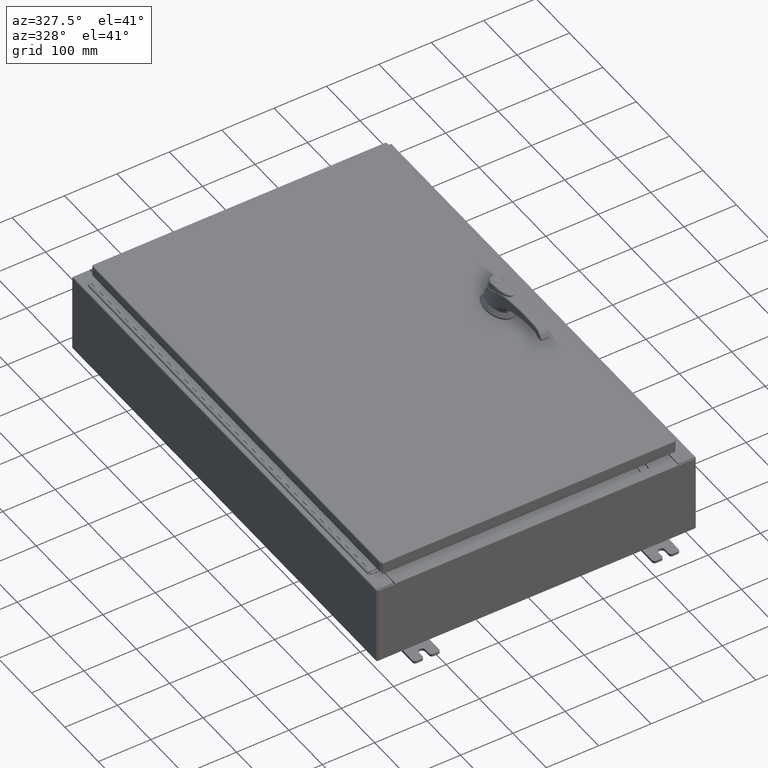
[diagram: clean part render]
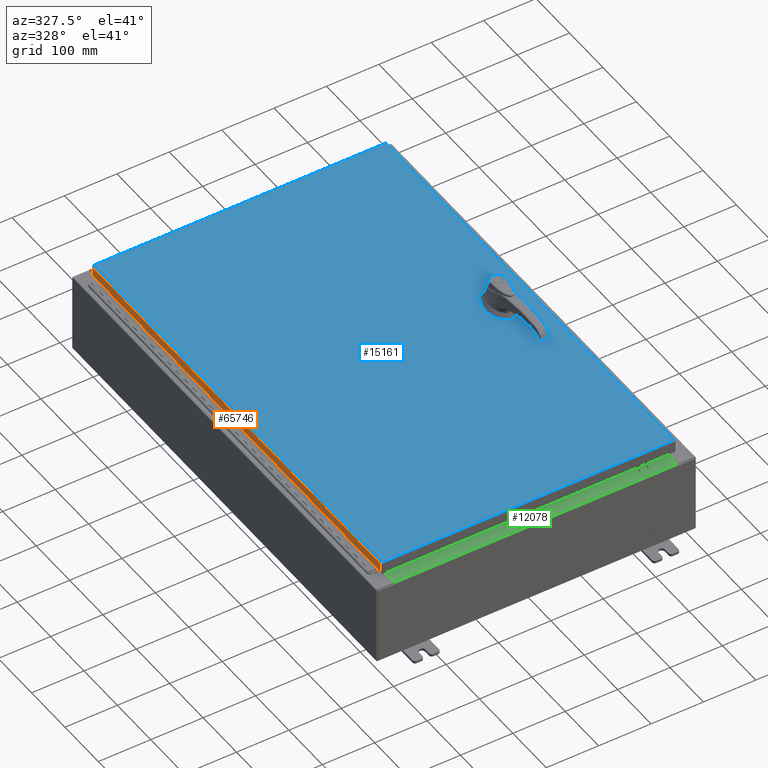
[diagram: same view with three faces highlighted in distinct colors, each labeled with its STEP entity id]
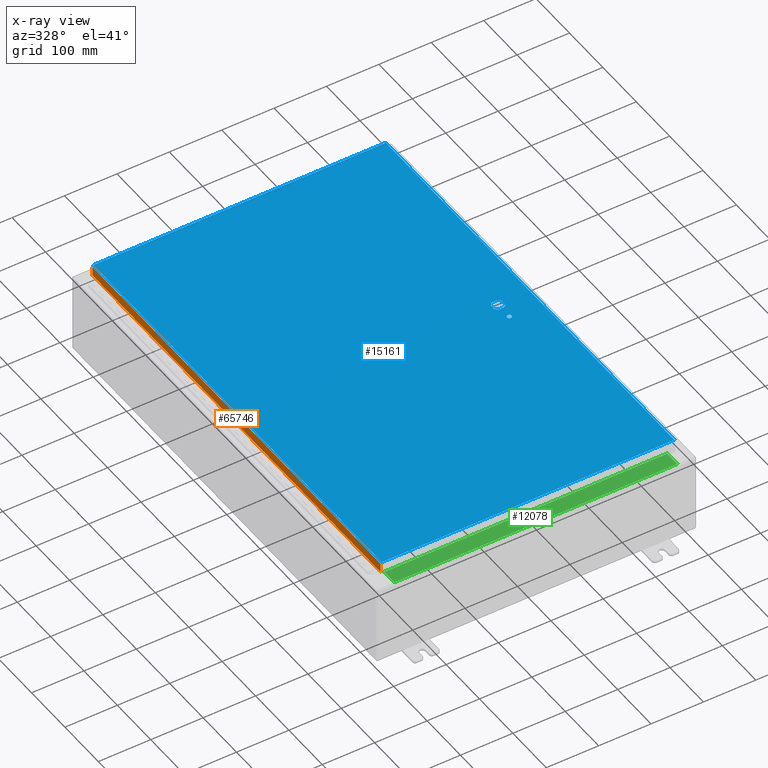
[diagram: x-ray of the same camera — body ghosted, the three highlighted faces saturated]
A machine part, auxiliary view with three faces highlighted in distinct colors.
The next image is the same camera in x-ray (body ghosted, the three faces saturated) — at least one of them is partly hidden behind the body in this view.
Their STEP definitions:

[orange] entity #65746 — the highlighted planar face has unit normal (1, 0, -0).
#4711 = CARTESIAN_POINT ( 'NONE',  ( -11.07800000000000300, -7.081645506917722700E-016, 3.387282206785411200E-014 ) ) ;
#9994 = CARTESIAN_POINT ( 'NONE',  ( -11.07800000000000300, 17.00515786437627600, 1.526192047629567600E-013 ) ) ;
#10007 = CARTESIAN_POINT ( 'NONE',  ( -11.07800000000000500, 17.00515786437628000, -0.7949999999999954900 ) ) ;
#13956 = CARTESIAN_POINT ( 'NONE',  ( -11.07800000000000300, -17.00515786437626200, -0.08770000000000115200 ) ) ;
#16037 = DIRECTION ( 'NONE',  ( -3.034122441942816500E-015, 0.0000000000000000000, -1.000000000000000000 ) ) ;
#18024 = VERTEX_POINT ( 'NONE', #13956 ) ;
#19663 = DIRECTION ( 'NONE',  ( -3.034122441942816500E-015, 6.982962677686265900E-015, -1.000000000000000000 ) ) ;
#19892 = EDGE_LOOP ( 'NONE', ( #105180, #26429, #85791, #76026 ) ) ;
#22192 = DIRECTION ( 'NONE',  ( 6.392530697705130400E-017, -1.000000000000000000, 6.392530697705074900E-017 ) ) ;
#23345 = CARTESIAN_POINT ( 'NONE',  ( -11.07800000000000500, -17.09399999999999800, -0.7949999999999997100 ) ) ;
#26429 = ORIENTED_EDGE ( 'NONE', *, *, #71006, .T. ) ;
#32975 = DIRECTION ( 'NONE',  ( -6.392530697705073700E-017, 1.000000000000000000, 1.238552822680358100E-016 ) ) ;
#35956 = CARTESIAN_POINT ( 'NONE',  ( -11.07800000000000500, 17.00515786437627600, -0.08770000000000223500 ) ) ;
#36972 = VERTEX_POINT ( 'NONE', #10007 ) ;
#42658 = DIRECTION ( 'NONE',  ( -3.034122441942816500E-015, 6.982962677686265900E-015, -1.000000000000000000 ) ) ;
#48564 = LINE ( 'NONE', #98133, #96052 ) ;
#62648 = VECTOR ( 'NONE', #19663, 39.37007874015748100 ) ;
#63544 = VECTOR ( 'NONE', #32975, 39.37007874015748100 ) ;
#65746 = ADVANCED_FACE ( 'NONE', ( #119421 ), #119395, .F. ) ;
#71006 = EDGE_CURVE ( 'NONE', #108847, #36972, #115996, .T. ) ;
#73019 = DIRECTION ( 'NONE',  ( 1.000000000000000000, 6.392530697705110700E-017, -3.034122441942816500E-015 ) ) ;
#76026 = ORIENTED_EDGE ( 'NONE', *, *, #103418, .F. ) ;
#80127 = VECTOR ( 'NONE', #42658, 39.37007874015748100 ) ;
#85791 = ORIENTED_EDGE ( 'NONE', *, *, #92243, .F. ) ;
#92243 = EDGE_CURVE ( 'NONE', #101010, #36972, #113909, .T. ) ;
#96052 = VECTOR ( 'NONE', #22192, 39.37007874015748100 ) ;
#98133 = CARTESIAN_POINT ( 'NONE',  ( -11.07800000000000300, -17.09399999999999800, -0.08770000000000004200 ) ) ;
#99413 = CARTESIAN_POINT ( 'NONE',  ( -11.07800000000000300, -17.00515786437626500, -0.07469999999999976700 ) ) ;
#101010 = VERTEX_POINT ( 'NONE', #113590 ) ;
#103418 = EDGE_CURVE ( 'NONE', #18024, #101010, #105278, .T. ) ;
#105180 = ORIENTED_EDGE ( 'NONE', *, *, #123096, .F. ) ;
#105278 = LINE ( 'NONE', #99413, #80127 ) ;
#108847 = VERTEX_POINT ( 'NONE', #35956 ) ;
#113590 = CARTESIAN_POINT ( 'NONE',  ( -11.07800000000000500, -17.00515786437626200, -0.7949999999999996000 ) ) ;
#113909 = LINE ( 'NONE', #23345, #63544 ) ;
#115996 = LINE ( 'NONE', #9994, #62648 ) ;
#119138 = AXIS2_PLACEMENT_3D ( 'NONE', #4711, #73019, #16037 ) ;
#119395 = PLANE ( 'NONE',  #119138 ) ;
#119421 = FACE_OUTER_BOUND ( 'NONE', #19892, .T. ) ;
#123096 = EDGE_CURVE ( 'NONE', #108847, #18024, #48564, .T. ) ;

[blue] entity #15161 — the highlighted planar face has unit normal (0, 0, -1).
#344 = AXIS2_PLACEMENT_3D ( 'NONE', #2021, #21382, #87847 ) ;
#1126 = VERTEX_POINT ( 'NONE', #59371 ) ;
#1748 = CARTESIAN_POINT ( 'NONE',  ( -10.99030000000000000, -17.00629999999999600, -2.048885995248197400E-016 ) ) ;
#2021 = CARTESIAN_POINT ( 'NONE',  ( 0.0000000000000000000, 0.0000000000000000000, 0.0000000000000000000 ) ) ;
#3129 = CARTESIAN_POINT ( 'NONE',  ( 8.749499999999997600, -1.338000000000000100, 0.0000000000000000000 ) ) ;
#4013 = EDGE_CURVE ( 'NONE', #18082, #109012, #105171, .T. ) ;
#4256 = ORIENTED_EDGE ( 'NONE', *, *, #9538, .F. ) ;
#5243 = VERTEX_POINT ( 'NONE', #10735 ) ;
#6283 = DIRECTION ( 'NONE',  ( -0.0000000000000000000, 0.0000000000000000000, 1.000000000000000000 ) ) ;
#6389 = LINE ( 'NONE', #53557, #104581 ) ;
#7324 = AXIS2_PLACEMENT_3D ( 'NONE', #41944, #108206, #51404 ) ;
#7805 = ORIENTED_EDGE ( 'NONE', *, *, #106083, .T. ) ;
#7890 = CARTESIAN_POINT ( 'NONE',  ( -10.99030000000000500, 17.00630000000000700, -3.483106191921935600E-015 ) ) ;
#8004 = CARTESIAN_POINT ( 'NONE',  ( 10.99029999999999800, 17.00630000000000700, -2.048885995248197400E-016 ) ) ;
#9538 = EDGE_CURVE ( 'NONE', #81159, #60518, #78024, .T. ) ;
#10735 = CARTESIAN_POINT ( 'NONE',  ( -10.99030000000000500, 17.00630000000000700, -3.483106191921935600E-015 ) ) ;
#12204 = ORIENTED_EDGE ( 'NONE', *, *, #86124, .F. ) ;
#12493 = ORIENTED_EDGE ( 'NONE', *, *, #30892, .F. ) ;
#14057 = AXIS2_PLACEMENT_3D ( 'NONE', #35515, #101744, #44986 ) ;
#15161 = ADVANCED_FACE ( 'NONE', ( #45966, #29691, #71224 ), #59182, .F. ) ;
#15181 = CARTESIAN_POINT ( 'NONE',  ( 8.980999999999921700, 0.2002273707563080300, 0.0000000000000000000 ) ) ;
#18082 = VERTEX_POINT ( 'NONE', #15181 ) ;
#18499 = VERTEX_POINT ( 'NONE', #121259 ) ;
#21382 = DIRECTION ( 'NONE',  ( 0.0000000000000000000, 0.0000000000000000000, -1.000000000000000000 ) ) ;
#21663 = EDGE_CURVE ( 'NONE', #50418, #5243, #56703, .T. ) ;
#22677 = ORIENTED_EDGE ( 'NONE', *, *, #45802, .F. ) ;
#23150 = DIRECTION ( 'NONE',  ( -0.0000000000000000000, 0.0000000000000000000, 1.000000000000000000 ) ) ;
#23697 = EDGE_CURVE ( 'NONE', #18499, #85894, #121634, .T. ) ;
#24064 = ORIENTED_EDGE ( 'NONE', *, *, #112886, .F. ) ;
#25254 = ORIENTED_EDGE ( 'NONE', *, *, #104871, .T. ) ;
#28287 = DIRECTION ( 'NONE',  ( -1.000000000000000000, -0.0000000000000000000, -0.0000000000000000000 ) ) ;
#29346 = CIRCLE ( 'NONE', #69842, 0.1715000000000011500 ) ;
#29691 = FACE_OUTER_BOUND ( 'NONE', #36516, .T. ) ;
#30892 = EDGE_CURVE ( 'NONE', #1126, #71836, #38860, .T. ) ;
#32340 = LINE ( 'NONE', #116155, #104985 ) ;
#33537 = ORIENTED_EDGE ( 'NONE', *, *, #46463, .F. ) ;
#34183 = CARTESIAN_POINT ( 'NONE',  ( 8.980999999999921700, 2.450686610769031800E-014, 0.0000000000000000000 ) ) ;
#35391 = CARTESIAN_POINT ( 'NONE',  ( 8.175000000000070000, 0.0000000000000000000, 0.0000000000000000000 ) ) ;
#35428 = DIRECTION ( 'NONE',  ( 0.0000000000000000000, 1.000000000000000000, 0.0000000000000000000 ) ) ;
#35515 = CARTESIAN_POINT ( 'NONE',  ( 8.577999999999995900, 0.0000000000000000000, 0.0000000000000000000 ) ) ;
#35997 = EDGE_LOOP ( 'NONE', ( #7805, #33537, #12493, #24064, #12204, #4256, #64079, #55983 ) ) ;
#36516 = EDGE_LOOP ( 'NONE', ( #25254, #56226, #97851, #37527 ) ) ;
#37304 = CARTESIAN_POINT ( 'NONE',  ( 8.175000000000070000, -0.2002273707563079800, 0.0000000000000000000 ) ) ;
#37527 = ORIENTED_EDGE ( 'NONE', *, *, #70819, .T. ) ;
#38860 = LINE ( 'NONE', #55438, #86316 ) ;
#41944 = CARTESIAN_POINT ( 'NONE',  ( 8.577999999999995900, -1.338000000000000100, 0.0000000000000000000 ) ) ;
#44272 = LINE ( 'NONE', #1748, #66561 ) ;
#44986 = DIRECTION ( 'NONE',  ( 1.000000000000000000, 0.0000000000000000000, 0.0000000000000000000 ) ) ;
#45546 = AXIS2_PLACEMENT_3D ( 'NONE', #63394, #6283, #72933 ) ;
#45802 = EDGE_CURVE ( 'NONE', #85894, #18499, #29346, .T. ) ;
#45966 = FACE_BOUND ( 'NONE', #81132, .T. ) ;
#46463 = EDGE_CURVE ( 'NONE', #71836, #68583, #119679, .T. ) ;
#47366 = DIRECTION ( 'NONE',  ( -0.0000000000000000000, 0.0000000000000000000, 1.000000000000000000 ) ) ;
#50418 = VERTEX_POINT ( 'NONE', #8004 ) ;
#51086 = CARTESIAN_POINT ( 'NONE',  ( 10.99029999999999600, -17.00629999999999200, -2.048885995248197400E-016 ) ) ;
#51404 = DIRECTION ( 'NONE',  ( 1.000000000000000000, 0.0000000000000000000, 0.0000000000000000000 ) ) ;
#51484 = LINE ( 'NONE', #34183, #73783 ) ;
#53557 = CARTESIAN_POINT ( 'NONE',  ( 10.99029999999999600, -17.00629999999999200, -2.048885995248197400E-016 ) ) ;
#55438 = CARTESIAN_POINT ( 'NONE',  ( 0.0000000000000000000, -0.4029999999999252000, 0.0000000000000000000 ) ) ;
#55983 = ORIENTED_EDGE ( 'NONE', *, *, #4013, .F. ) ;
#56226 = ORIENTED_EDGE ( 'NONE', *, *, #97133, .T. ) ;
#56703 = LINE ( 'NONE', #94658, #98249 ) ;
#57597 = LINE ( 'NONE', #35391, #105071 ) ;
#59182 = PLANE ( 'NONE',  #344 ) ;
#59371 = CARTESIAN_POINT ( 'NONE',  ( 8.377772629243686700, -0.4029999999999252000, 0.0000000000000000000 ) ) ;
#60518 = VERTEX_POINT ( 'NONE', #111168 ) ;
#63394 = CARTESIAN_POINT ( 'NONE',  ( 8.577999999999995900, 0.0000000000000000000, 0.0000000000000000000 ) ) ;
#64079 = ORIENTED_EDGE ( 'NONE', *, *, #75970, .F. ) ;
#66561 = VECTOR ( 'NONE', #78041, 39.37007874015748100 ) ;
#68583 = VERTEX_POINT ( 'NONE', #73844 ) ;
#69842 = AXIS2_PLACEMENT_3D ( 'NONE', #80083, #23150, #89628 ) ;
#69953 = ORIENTED_EDGE ( 'NONE', *, *, #23697, .F. ) ;
#70819 = EDGE_CURVE ( 'NONE', #5243, #90300, #99731, .T. ) ;
#71224 = FACE_BOUND ( 'NONE', #35997, .T. ) ;
#71431 = CIRCLE ( 'NONE', #94735, 0.4499999999999156900 ) ;
#71836 = VERTEX_POINT ( 'NONE', #81900 ) ;
#72933 = DIRECTION ( 'NONE',  ( 1.000000000000000000, 0.0000000000000000000, 0.0000000000000000000 ) ) ;
#73168 = VERTEX_POINT ( 'NONE', #37304 ) ;
#73783 = VECTOR ( 'NONE', #91026, 39.37007874015748100 ) ;
#73844 = CARTESIAN_POINT ( 'NONE',  ( 8.980999999999921700, -0.2002273707563079800, 0.0000000000000000000 ) ) ;
#74543 = DIRECTION ( 'NONE',  ( 0.0000000000000000000, -1.000000000000000000, 0.0000000000000000000 ) ) ;
#75970 = EDGE_CURVE ( 'NONE', #109012, #81159, #32340, .T. ) ;
#78024 = CIRCLE ( 'NONE', #45546, 0.4499999999999156900 ) ;
#78041 = DIRECTION ( 'NONE',  ( 1.000000000000000000, -0.0000000000000000000, -0.0000000000000000000 ) ) ;
#79419 = AXIS2_PLACEMENT_3D ( 'NONE', #92798, #94849, #92020 ) ;
#80083 = CARTESIAN_POINT ( 'NONE',  ( 8.577999999999995900, -1.338000000000000100, 0.0000000000000000000 ) ) ;
#81132 = EDGE_LOOP ( 'NONE', ( #22677, #69953 ) ) ;
#81159 = VERTEX_POINT ( 'NONE', #120819 ) ;
#81900 = CARTESIAN_POINT ( 'NONE',  ( 8.778227370756305000, -0.4029999999999252000, 0.0000000000000000000 ) ) ;
#85256 = CARTESIAN_POINT ( 'NONE',  ( 8.778227370756305000, 0.4029999999999252000, 0.0000000000000000000 ) ) ;
#85894 = VERTEX_POINT ( 'NONE', #3129 ) ;
#86124 = EDGE_CURVE ( 'NONE', #60518, #73168, #57597, .T. ) ;
#86316 = VECTOR ( 'NONE', #93252, 39.37007874015748100 ) ;
#87705 = VERTEX_POINT ( 'NONE', #51086 ) ;
#87847 = DIRECTION ( 'NONE',  ( -1.000000000000000000, 0.0000000000000000000, -0.0000000000000000000 ) ) ;
#88081 = DIRECTION ( 'NONE',  ( -1.000000000000000000, 0.0000000000000000000, 0.0000000000000000000 ) ) ;
#89628 = DIRECTION ( 'NONE',  ( 1.000000000000000000, 0.0000000000000000000, 0.0000000000000000000 ) ) ;
#90300 = VERTEX_POINT ( 'NONE', #110254 ) ;
#91026 = DIRECTION ( 'NONE',  ( 2.728745808672812900E-015, -1.000000000000000000, 0.0000000000000000000 ) ) ;
#92020 = DIRECTION ( 'NONE',  ( 1.000000000000000000, 0.0000000000000000000, 0.0000000000000000000 ) ) ;
#92798 = CARTESIAN_POINT ( 'NONE',  ( 8.577999999999995900, 0.0000000000000000000, 0.0000000000000000000 ) ) ;
#93252 = DIRECTION ( 'NONE',  ( 1.000000000000000000, 0.0000000000000000000, 0.0000000000000000000 ) ) ;
#94658 = CARTESIAN_POINT ( 'NONE',  ( 10.99029999999999800, 17.00630000000000700, -2.048885995248197400E-016 ) ) ;
#94735 = AXIS2_PLACEMENT_3D ( 'NONE', #104126, #47366, #113637 ) ;
#94849 = DIRECTION ( 'NONE',  ( -0.0000000000000000000, 0.0000000000000000000, 1.000000000000000000 ) ) ;
#96798 = VECTOR ( 'NONE', #74543, 39.37007874015748100 ) ;
#97133 = EDGE_CURVE ( 'NONE', #87705, #50418, #6389, .T. ) ;
#97851 = ORIENTED_EDGE ( 'NONE', *, *, #21663, .T. ) ;
#98249 = VECTOR ( 'NONE', #28287, 39.37007874015748100 ) ;
#99731 = LINE ( 'NONE', #7890, #96798 ) ;
#101744 = DIRECTION ( 'NONE',  ( -0.0000000000000000000, 0.0000000000000000000, 1.000000000000000000 ) ) ;
#104126 = CARTESIAN_POINT ( 'NONE',  ( 8.577999999999995900, 0.0000000000000000000, 0.0000000000000000000 ) ) ;
#104581 = VECTOR ( 'NONE', #35428, 39.37007874015748100 ) ;
#104871 = EDGE_CURVE ( 'NONE', #90300, #87705, #44272, .T. ) ;
#104985 = VECTOR ( 'NONE', #88081, 39.37007874015748100 ) ;
#105071 = VECTOR ( 'NONE', #120698, 39.37007874015748100 ) ;
#105171 = CIRCLE ( 'NONE', #79419, 0.4499999999999156900 ) ;
#106083 = EDGE_CURVE ( 'NONE', #18082, #68583, #51484, .T. ) ;
#108206 = DIRECTION ( 'NONE',  ( -0.0000000000000000000, 0.0000000000000000000, 1.000000000000000000 ) ) ;
#109012 = VERTEX_POINT ( 'NONE', #85256 ) ;
#110254 = CARTESIAN_POINT ( 'NONE',  ( -10.99030000000000000, -17.00629999999999600, -2.048885995248197400E-016 ) ) ;
#111168 = CARTESIAN_POINT ( 'NONE',  ( 8.175000000000070000, 0.2002273707563079800, 0.0000000000000000000 ) ) ;
#112886 = EDGE_CURVE ( 'NONE', #73168, #1126, #71431, .T. ) ;
#113637 = DIRECTION ( 'NONE',  ( 1.000000000000000000, 0.0000000000000000000, 0.0000000000000000000 ) ) ;
#116155 = CARTESIAN_POINT ( 'NONE',  ( 0.0000000000000000000, 0.4029999999999252000, 0.0000000000000000000 ) ) ;
#119679 = CIRCLE ( 'NONE', #14057, 0.4499999999999156900 ) ;
#120698 = DIRECTION ( 'NONE',  ( 0.0000000000000000000, -1.000000000000000000, 0.0000000000000000000 ) ) ;
#120819 = CARTESIAN_POINT ( 'NONE',  ( 8.377772629243686700, 0.4029999999999252000, 0.0000000000000000000 ) ) ;
#121259 = CARTESIAN_POINT ( 'NONE',  ( 8.406499999999994100, -1.338000000000000100, 0.0000000000000000000 ) ) ;
#121634 = CIRCLE ( 'NONE', #7324, 0.1715000000000011500 ) ;

[green] entity #12078 — the highlighted planar face has unit normal (-0, -0, 1).
#12078 = ADVANCED_FACE ( 'NONE', ( #21133 ), #89532, .T. ) ;
#18706 = ORIENTED_EDGE ( 'NONE', *, *, #98474, .F. ) ;
#19218 = EDGE_LOOP ( 'NONE', ( #101499, #22385, #18706, #112375 ) ) ;
#21133 = FACE_OUTER_BOUND ( 'NONE', #19218, .T. ) ;
#22385 = ORIENTED_EDGE ( 'NONE', *, *, #57316, .F. ) ;
#27262 = VECTOR ( 'NONE', #91147, 39.37007874015748100 ) ;
#33139 = CARTESIAN_POINT ( 'NONE',  ( -10.63720000000000200, -0.08770000000000000000, 3.000000000000000900 ) ) ;
#33889 = CARTESIAN_POINT ( 'NONE',  ( 10.63720000000000200, -1.300299999999999800, 3.000000000000005300 ) ) ;
#42130 = CARTESIAN_POINT ( 'NONE',  ( -10.63720000000000200, -1.287299999999999200, 3.000000000000005300 ) ) ;
#42226 = DIRECTION ( 'NONE',  ( 0.0000000000000000000, -1.000000000000000000, 3.566381192773190000E-015 ) ) ;
#46863 = CARTESIAN_POINT ( 'NONE',  ( 10.63720000000000400, -1.287299999999999900, 3.000000000000005300 ) ) ;
#48643 = DIRECTION ( 'NONE',  ( -1.000000000000000000, 2.568202152506545800E-017, -9.159187855938968600E-032 ) ) ;
#51792 = CARTESIAN_POINT ( 'NONE',  ( -10.63720000000000200, -0.07469999999999973900, 3.000000000000000900 ) ) ;
#55400 = LINE ( 'NONE', #33889, #27262 ) ;
#57316 = EDGE_CURVE ( 'NONE', #111552, #89375, #89552, .T. ) ;
#60817 = EDGE_CURVE ( 'NONE', #89375, #103420, #108253, .T. ) ;
#60849 = CARTESIAN_POINT ( 'NONE',  ( 0.0000000000000000000, 1.069354855923099900E-014, 3.000000000000000900 ) ) ;
#63737 = LINE ( 'NONE', #86439, #108184 ) ;
#64848 = VERTEX_POINT ( 'NONE', #112949 ) ;
#73935 = EDGE_CURVE ( 'NONE', #64848, #103420, #63737, .T. ) ;
#75513 = DIRECTION ( 'NONE',  ( -1.000000000000000000, 0.0000000000000000000, 0.0000000000000000000 ) ) ;
#80154 = VECTOR ( 'NONE', #118921, 39.37007874015748100 ) ;
#81155 = CARTESIAN_POINT ( 'NONE',  ( 10.63720000000000200, -1.287299999999999900, 3.000000000000005300 ) ) ;
#83559 = VECTOR ( 'NONE', #75513, 39.37007874015748100 ) ;
#86439 = CARTESIAN_POINT ( 'NONE',  ( -2.252313287748515100E-018, -0.08770000000000000000, 3.000000000000001300 ) ) ;
#89375 = VERTEX_POINT ( 'NONE', #42130 ) ;
#89532 = PLANE ( 'NONE',  #117952 ) ;
#89552 = LINE ( 'NONE', #46863, #83559 ) ;
#91147 = DIRECTION ( 'NONE',  ( -0.0000000000000000000, -1.000000000000000000, 3.566381192773190000E-015 ) ) ;
#98474 = EDGE_CURVE ( 'NONE', #64848, #111552, #55400, .T. ) ;
#98968 = DIRECTION ( 'NONE',  ( 0.0000000000000000000, 3.566381192773190000E-015, 1.000000000000000000 ) ) ;
#101499 = ORIENTED_EDGE ( 'NONE', *, *, #60817, .F. ) ;
#103420 = VERTEX_POINT ( 'NONE', #33139 ) ;
#108184 = VECTOR ( 'NONE', #48643, 39.37007874015748100 ) ;
#108253 = LINE ( 'NONE', #51792, #80154 ) ;
#111552 = VERTEX_POINT ( 'NONE', #81155 ) ;
#112375 = ORIENTED_EDGE ( 'NONE', *, *, #73935, .T. ) ;
#112949 = CARTESIAN_POINT ( 'NONE',  ( 10.63720000000000400, -0.08769999999999965300, 3.000000000000000900 ) ) ;
#117952 = AXIS2_PLACEMENT_3D ( 'NONE', #60849, #98968, #42226 ) ;
#118921 = DIRECTION ( 'NONE',  ( -0.0000000000000000000, 1.000000000000000000, -3.566381192773190000E-015 ) ) ;